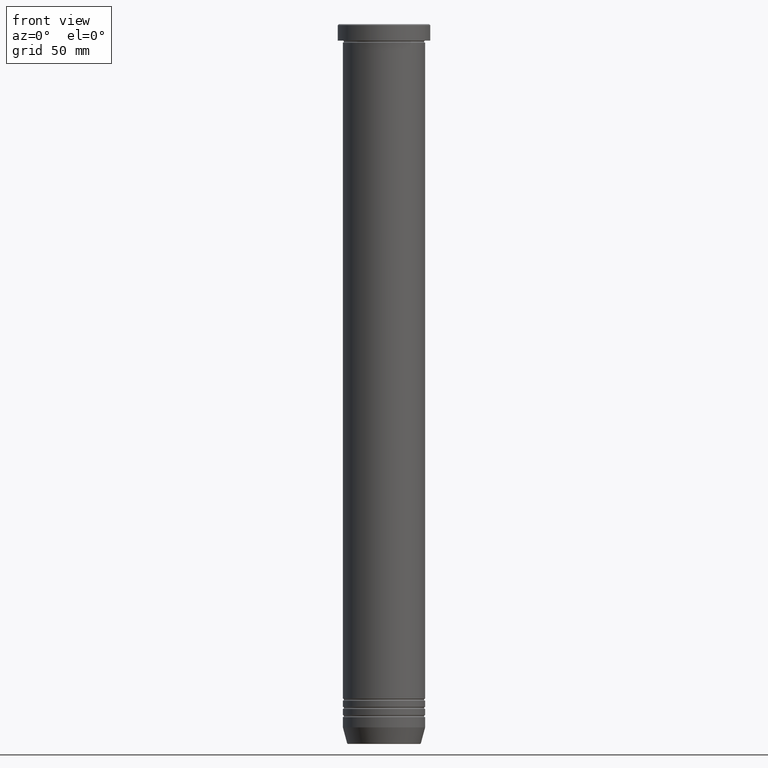
[diagram: clean part render]
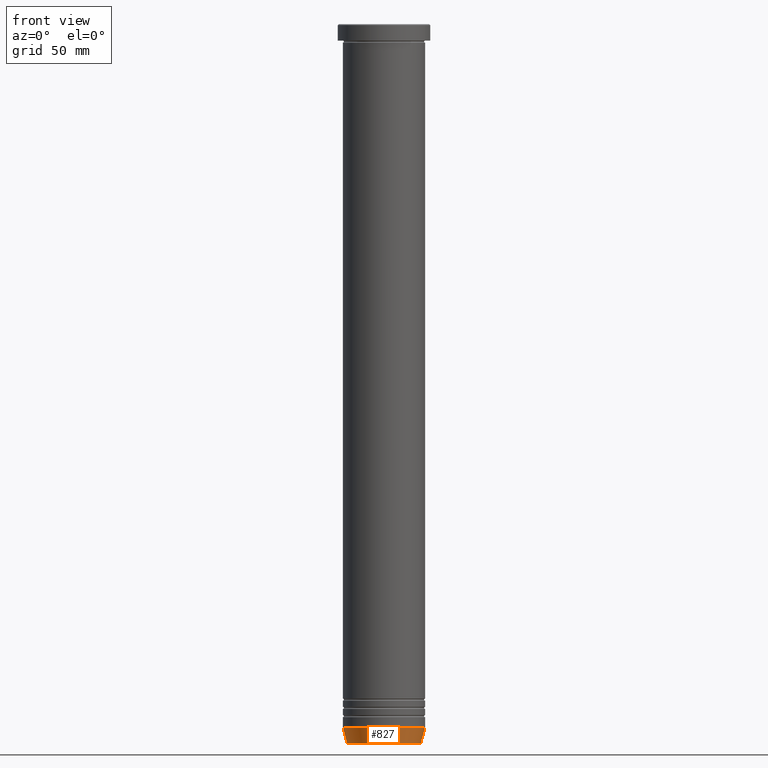
[diagram: same view with one face highlighted and labeled with its STEP entity id]
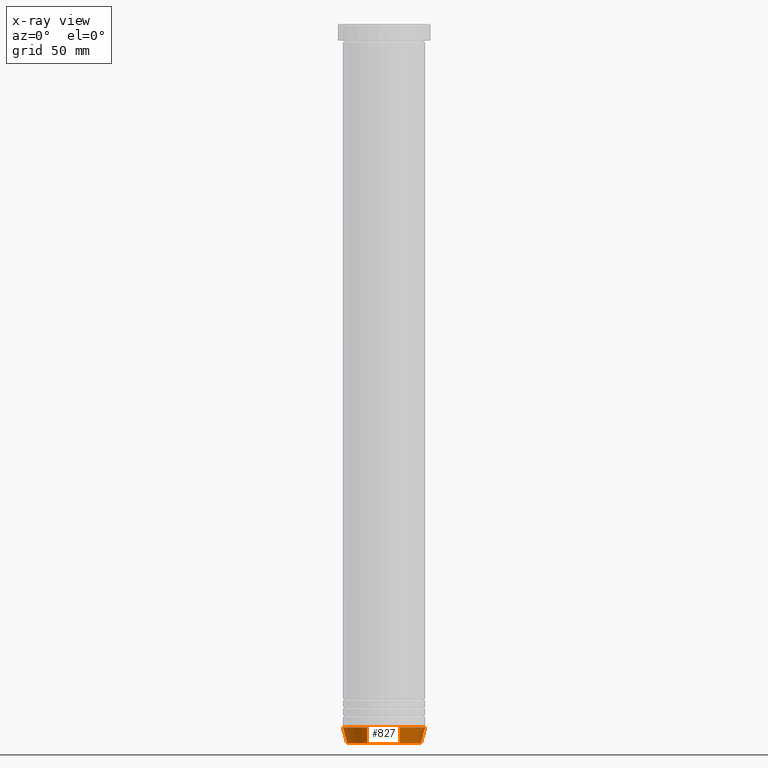
[diagram: x-ray of the same camera — body ghosted, the highlighted face saturated]
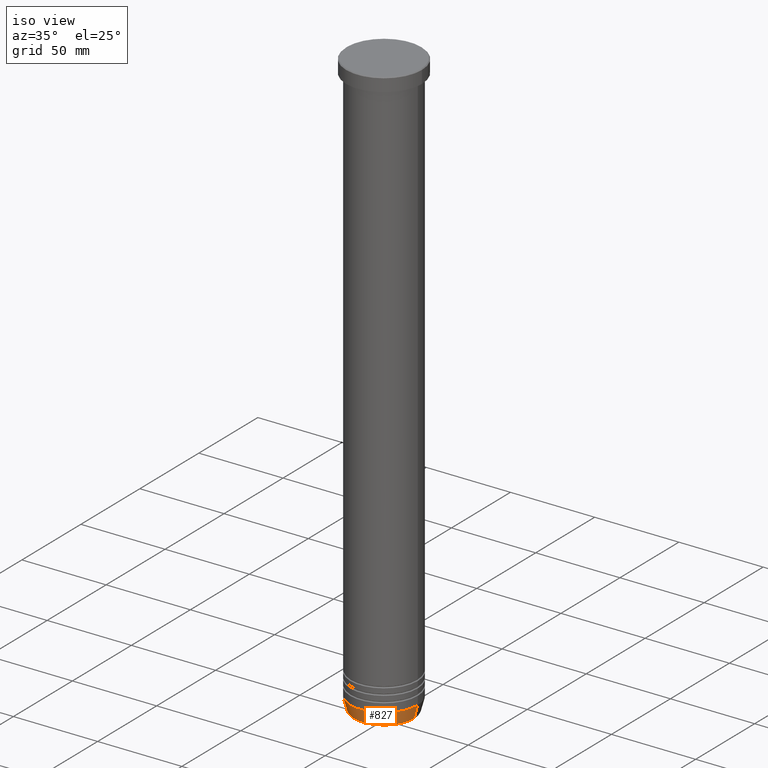
[diagram: same view with one face highlighted and labeled with its STEP entity id]
A machine part, front view. The second image highlights one B-rep face of the part: STEP entity #827.
The next image is the same camera in x-ray: the body ghosted, the highlighted face saturated — about 0% of this face is hidden behind the body in this view.
A second angle (iso view) of the same face is appended — the face is thin or edge-on in the first view.
In plain terms, the highlighted conical surface has half-angle 15 deg.
Its self-contained STEP definition (entity closure, byte-faithful):
#19 = CARTESIAN_POINT ( 'NONE',  ( 17.95570587970606269, 0.000000000000000000, -349.6294095225512706 ) ) ;
#20 = VERTEX_POINT ( 'NONE', #591 ) ;
#89 = DIRECTION ( 'NONE',  ( 0.2588190451025212391, 0.000000000000000000, 0.9659258262890680902 ) ) ;
#150 = ORIENTED_EDGE ( 'NONE', *, *, #324, .T. ) ;
#153 = VECTOR ( 'NONE', #642, 1000.000000000000114 ) ;
#203 = ORIENTED_EDGE ( 'NONE', *, *, #388, .F. ) ;
#218 = VECTOR ( 'NONE', #89, 1000.000000000000114 ) ;
#225 = ORIENTED_EDGE ( 'NONE', *, *, #492, .F. ) ;
#269 = FACE_OUTER_BOUND ( 'NONE', #624, .T. ) ;
#289 = CIRCLE ( 'NONE', #412, 20.00000000000000000 ) ;
#302 = CARTESIAN_POINT ( 'NONE',  ( -20.00000000000000000, 2.449293598294706513E-15, -342.0000000000000000 ) ) ;
#324 = EDGE_CURVE ( 'NONE', #20, #732, #660, .T. ) ;
#342 = LINE ( 'NONE', #397, #153 ) ;
#358 = CARTESIAN_POINT ( 'NONE',  ( 0.000000000000000000, 0.000000000000000000, -349.6294095225512706 ) ) ;
#372 = DIRECTION ( 'NONE',  ( -1.000000000000000000, 0.000000000000000000, 0.000000000000000000 ) ) ;
#380 = AXIS2_PLACEMENT_3D ( 'NONE', #358, #519, #372 ) ;
#388 = EDGE_CURVE ( 'NONE', #667, #674, #289, .T. ) ;
#397 = CARTESIAN_POINT ( 'NONE',  ( -17.85640646055101399, 2.186779101618791656E-15, -350.0000000000000568 ) ) ;
#406 = EDGE_CURVE ( 'NONE', #732, #674, #573, .T. ) ;
#412 = AXIS2_PLACEMENT_3D ( 'NONE', #477, #629, #957 ) ;
#477 = CARTESIAN_POINT ( 'NONE',  ( 0.000000000000000000, 0.000000000000000000, -342.0000000000000000 ) ) ;
#492 = EDGE_CURVE ( 'NONE', #20, #667, #342, .T. ) ;
#519 = DIRECTION ( 'NONE',  ( -0.000000000000000000, -0.000000000000000000, 1.000000000000000000 ) ) ;
#523 = CARTESIAN_POINT ( 'NONE',  ( 20.00000000000000000, 0.000000000000000000, -342.0000000000000000 ) ) ;
#573 = LINE ( 'NONE', #894, #218 ) ;
#591 = CARTESIAN_POINT ( 'NONE',  ( -17.95570587970606269, 2.324116685748020582E-15, -349.6294095225512706 ) ) ;
#624 = EDGE_LOOP ( 'NONE', ( #225, #150, #1046, #203 ) ) ;
#629 = DIRECTION ( 'NONE',  ( -0.000000000000000000, -0.000000000000000000, 1.000000000000000000 ) ) ;
#642 = DIRECTION ( 'NONE',  ( -0.2588190451025212391, 3.169619151431771721E-17, 0.9659258262890680902 ) ) ;
#660 = CIRCLE ( 'NONE', #380, 17.95570587970606269 ) ;
#667 = VERTEX_POINT ( 'NONE', #302 ) ;
#674 = VERTEX_POINT ( 'NONE', #523 ) ;
#732 = VERTEX_POINT ( 'NONE', #19 ) ;
#734 = CARTESIAN_POINT ( 'NONE',  ( 0.000000000000000000, 0.000000000000000000, -350.0000000000000568 ) ) ;
#827 = ADVANCED_FACE ( 'NONE', ( #269 ), #832, .T. ) ;
#832 = CONICAL_SURFACE ( 'NONE', #1030, 17.85640646055101399, 0.2617993877991499629 ) ;
#893 = DIRECTION ( 'NONE',  ( -0.000000000000000000, -0.000000000000000000, 1.000000000000000000 ) ) ;
#894 = CARTESIAN_POINT ( 'NONE',  ( 17.85640646055101399, 0.000000000000000000, -350.0000000000000568 ) ) ;
#957 = DIRECTION ( 'NONE',  ( 1.000000000000000000, 0.000000000000000000, 0.000000000000000000 ) ) ;
#996 = DIRECTION ( 'NONE',  ( 1.000000000000000000, 0.000000000000000000, 0.000000000000000000 ) ) ;
#1030 = AXIS2_PLACEMENT_3D ( 'NONE', #734, #893, #996 ) ;
#1046 = ORIENTED_EDGE ( 'NONE', *, *, #406, .T. ) ;